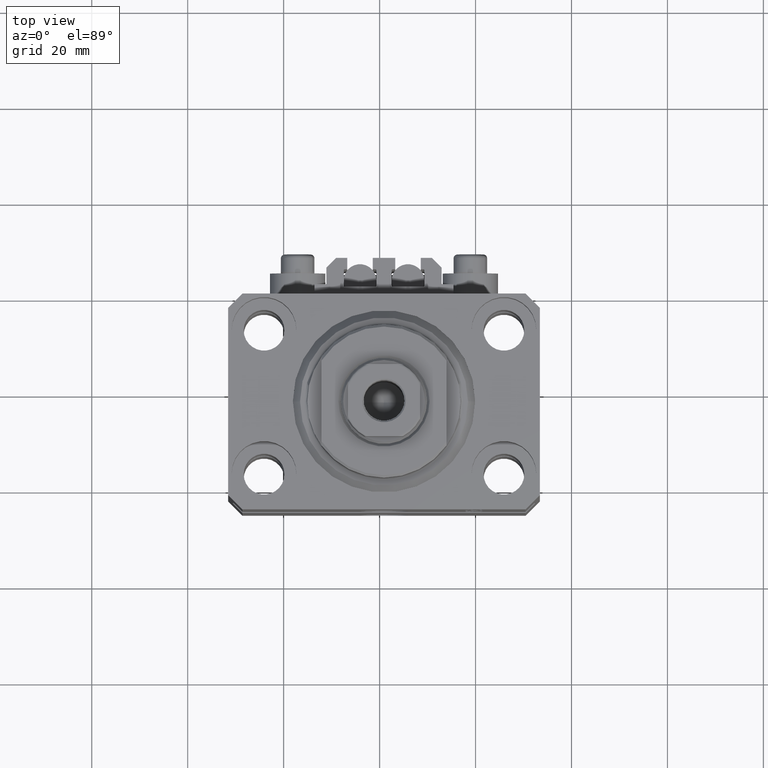
[diagram: clean part render]
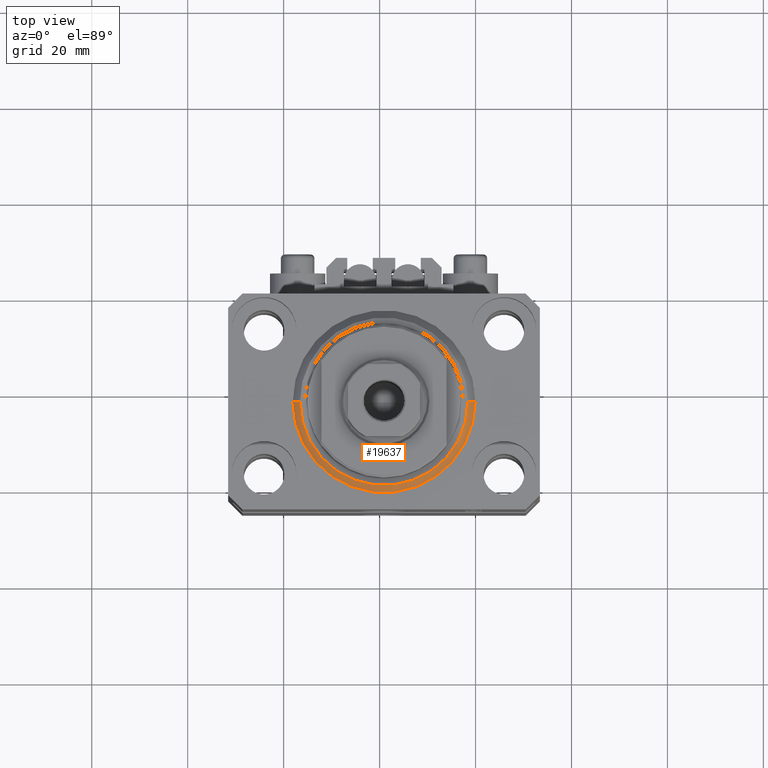
[diagram: same view with one face highlighted and labeled with its STEP entity id]
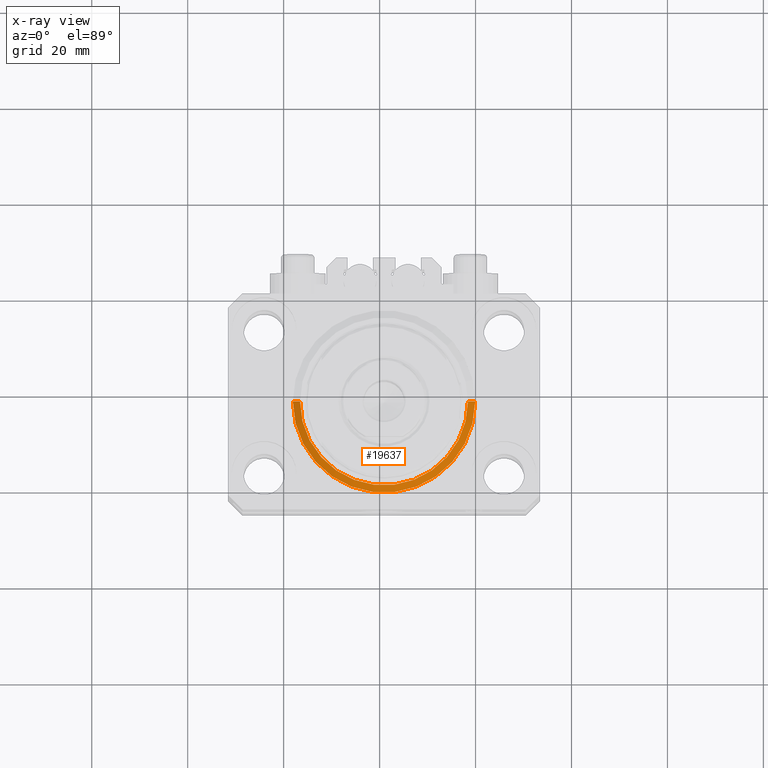
[diagram: x-ray of the same camera — body ghosted, the highlighted face saturated]
A machine part, top view. The second image highlights one B-rep face of the part: STEP entity #19637.
The next image is the same camera in x-ray: the body ghosted, the highlighted face saturated — about 0% of this face is hidden behind the body in this view.
In plain terms, the highlighted conical surface has half-angle 45 deg.
Its self-contained STEP definition (entity closure, byte-faithful):
#2709 = VERTEX_POINT ( 'NONE', #32123 ) ;
#4830 = CARTESIAN_POINT ( 'NONE',  ( -17.49999999999999645, 2.234980408443919215E-15, 0.000000000000000000 ) ) ;
#5768 = VECTOR ( 'NONE', #13916, 1000.000000000000000 ) ;
#6381 = CARTESIAN_POINT ( 'NONE',  ( -19.00000000000000000, 2.326828918379970970E-15, 1.500000000000001332 ) ) ;
#6940 = ORIENTED_EDGE ( 'NONE', *, *, #35820, .F. ) ;
#8448 = VERTEX_POINT ( 'NONE', #26584 ) ;
#8702 = AXIS2_PLACEMENT_3D ( 'NONE', #45689, #12067, #12553 ) ;
#9293 = CARTESIAN_POINT ( 'NONE',  ( 19.00000000000000000, 0.000000000000000000, 1.500000000000001332 ) ) ;
#10357 = ORIENTED_EDGE ( 'NONE', *, *, #42129, .F. ) ;
#10784 = LINE ( 'NONE', #6381, #28777 ) ;
#10829 = DIRECTION ( 'NONE',  ( 1.000000000000000000, 0.000000000000000000, 0.000000000000000000 ) ) ;
#11763 = CARTESIAN_POINT ( 'NONE',  ( 0.000000000000000000, 0.000000000000000000, 0.000000000000000000 ) ) ;
#11936 = CIRCLE ( 'NONE', #17418, 19.00000000000000000 ) ;
#12067 = DIRECTION ( 'NONE',  ( -0.000000000000000000, -0.000000000000000000, 1.000000000000000000 ) ) ;
#12553 = DIRECTION ( 'NONE',  ( 1.000000000000000000, 0.000000000000000000, 0.000000000000000000 ) ) ;
#12901 = VERTEX_POINT ( 'NONE', #4830 ) ;
#12977 = ORIENTED_EDGE ( 'NONE', *, *, #27459, .F. ) ;
#13325 = ORIENTED_EDGE ( 'NONE', *, *, #48367, .T. ) ;
#13852 = EDGE_LOOP ( 'NONE', ( #10357, #6940, #13325, #12977 ) ) ;
#13916 = DIRECTION ( 'NONE',  ( 0.7071067811865483499, 0.000000000000000000, 0.7071067811865467956 ) ) ;
#17418 = AXIS2_PLACEMENT_3D ( 'NONE', #33412, #44694, #10829 ) ;
#18357 = VERTEX_POINT ( 'NONE', #18745 ) ;
#18745 = CARTESIAN_POINT ( 'NONE',  ( -19.00000000000000000, 0.000000000000000000, 1.500000000000001332 ) ) ;
#19637 = ADVANCED_FACE ( 'NONE', ( #30731 ), #39246, .T. ) ;
#26584 = CARTESIAN_POINT ( 'NONE',  ( 17.49999999999999645, 0.000000000000000000, 0.000000000000000000 ) ) ;
#27459 = EDGE_CURVE ( 'NONE', #18357, #2709, #11936, .T. ) ;
#28777 = VECTOR ( 'NONE', #33117, 1000.000000000000000 ) ;
#30278 = AXIS2_PLACEMENT_3D ( 'NONE', #11763, #30912, #45625 ) ;
#30731 = FACE_OUTER_BOUND ( 'NONE', #13852, .T. ) ;
#30912 = DIRECTION ( 'NONE',  ( -0.000000000000000000, -0.000000000000000000, -1.000000000000000000 ) ) ;
#32123 = CARTESIAN_POINT ( 'NONE',  ( 19.00000000000000000, 2.326828918379970970E-15, 1.500000000000001332 ) ) ;
#33117 = DIRECTION ( 'NONE',  ( -0.7071067811865483499, 8.659560562354942719E-17, 0.7071067811865467956 ) ) ;
#33412 = CARTESIAN_POINT ( 'NONE',  ( 0.000000000000000000, 0.000000000000000000, 1.500000000000001332 ) ) ;
#35820 = EDGE_CURVE ( 'NONE', #8448, #12901, #45919, .T. ) ;
#39246 = CONICAL_SURFACE ( 'NONE', #8702, 19.00000000000000000, 0.7853981633974492782 ) ;
#40192 = LINE ( 'NONE', #9293, #5768 ) ;
#42129 = EDGE_CURVE ( 'NONE', #12901, #18357, #10784, .T. ) ;
#44694 = DIRECTION ( 'NONE',  ( -0.000000000000000000, -0.000000000000000000, 1.000000000000000000 ) ) ;
#45625 = DIRECTION ( 'NONE',  ( 1.000000000000000000, 0.000000000000000000, 0.000000000000000000 ) ) ;
#45689 = CARTESIAN_POINT ( 'NONE',  ( 0.000000000000000000, 0.000000000000000000, 1.500000000000001332 ) ) ;
#45919 = CIRCLE ( 'NONE', #30278, 17.49999999999999645 ) ;
#48367 = EDGE_CURVE ( 'NONE', #8448, #2709, #40192, .T. ) ;